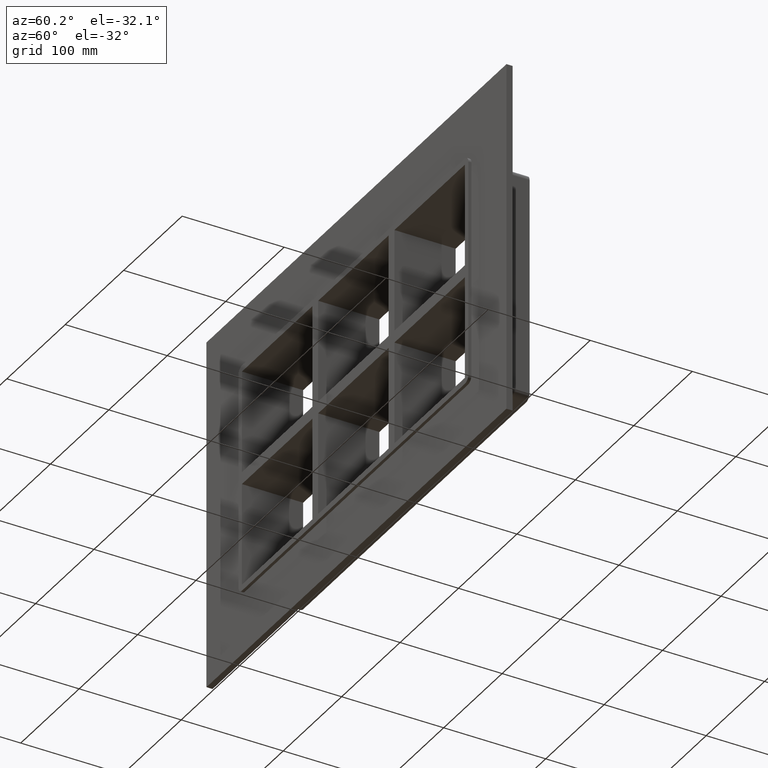
[diagram: clean part render]
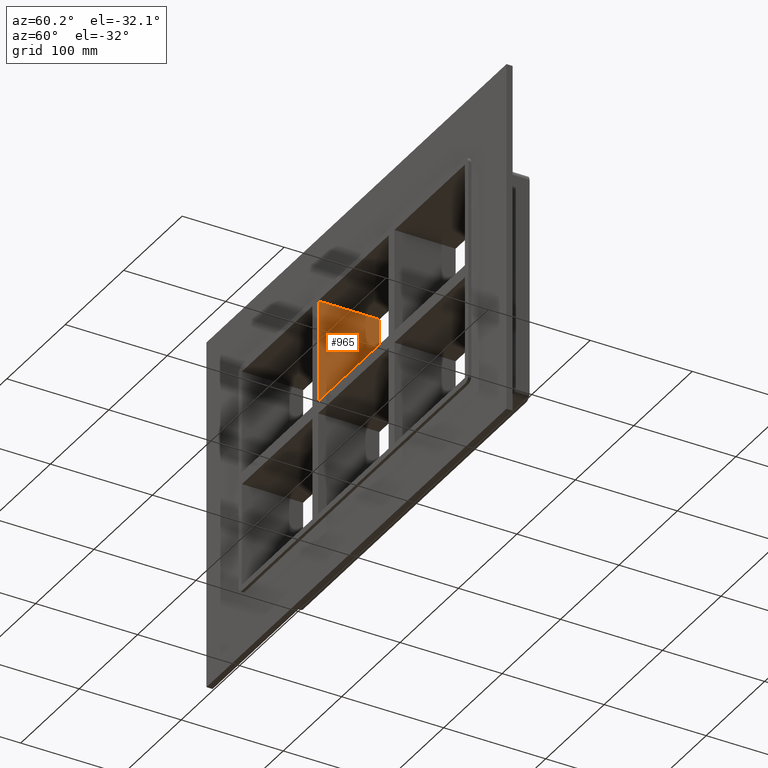
[diagram: same view with one face highlighted and labeled with its STEP entity id]
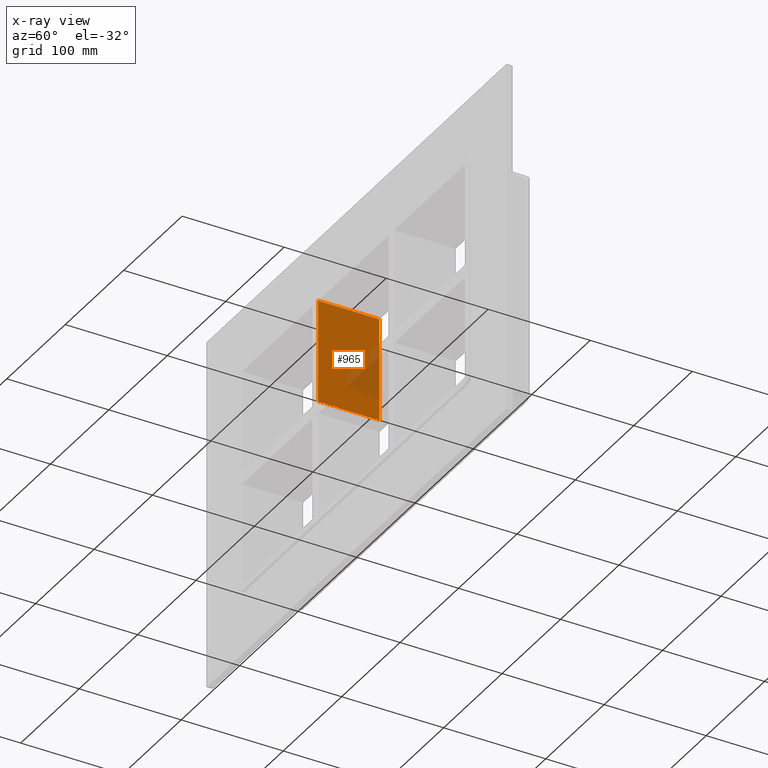
[diagram: x-ray of the same camera — body ghosted, the highlighted face saturated]
A machine part, auxiliary view. The second image highlights one B-rep face of the part: STEP entity #965.
The next image is the same camera in x-ray: the body ghosted, the highlighted face saturated — about 18% of this face is hidden behind the body in this view.
In plain terms, the highlighted planar face has unit normal (1, 0, 0).
Its self-contained STEP definition (entity closure, byte-faithful):
#383=CARTESIAN_POINT('',(-60.249999999996362,-3.0,5.999999999999943));
#384=VERTEX_POINT('',#383);
#391=CARTESIAN_POINT('',(-60.249999999996362,-3.0,107.00000000000003));
#392=VERTEX_POINT('',#391);
#393=CARTESIAN_POINT('',(-60.249999999996362,-3.0,107.00000000000003));
#394=DIRECTION('',(0.0,0.0,-1.0));
#395=VECTOR('',#394,101.00000000000009);
#396=LINE('',#393,#395);
#397=EDGE_CURVE('',#392,#384,#396,.T.);
#599=CARTESIAN_POINT('',(-60.249999999996362,57.0,107.00000000000003));
#600=VERTEX_POINT('',#599);
#601=CARTESIAN_POINT('',(-60.249999999996362,-3.0,107.00000000000003));
#602=DIRECTION('',(0.0,1.0,0.0));
#603=VECTOR('',#602,60.000000000000007);
#604=LINE('',#601,#603);
#605=EDGE_CURVE('',#392,#600,#604,.T.);
#677=CARTESIAN_POINT('',(-60.249999999996362,57.0,5.999999999999943));
#678=VERTEX_POINT('',#677);
#685=CARTESIAN_POINT('',(-60.249999999996362,-3.0,5.999999999999943));
#686=DIRECTION('',(0.0,1.0,0.0));
#687=VECTOR('',#686,60.0);
#688=LINE('',#685,#687);
#689=EDGE_CURVE('',#384,#678,#688,.T.);
#884=CARTESIAN_POINT('',(-60.249999999996362,57.0,107.00000000000003));
#885=DIRECTION('',(0.0,0.0,-1.0));
#886=VECTOR('',#885,101.00000000000009);
#887=LINE('',#884,#886);
#888=EDGE_CURVE('',#600,#678,#887,.T.);
#954=CARTESIAN_POINT('',(-60.249999999996362,-3.0,107.00000000000003));
#955=DIRECTION('',(1.0,0.0,0.0));
#956=DIRECTION('',(0.0,0.0,-1.0));
#957=AXIS2_PLACEMENT_3D('',#954,#955,#956);
#958=PLANE('',#957);
#959=ORIENTED_EDGE('',*,*,#689,.T.);
#960=ORIENTED_EDGE('',*,*,#888,.F.);
#961=ORIENTED_EDGE('',*,*,#605,.F.);
#962=ORIENTED_EDGE('',*,*,#397,.T.);
#963=EDGE_LOOP('',(#959,#960,#961,#962));
#964=FACE_OUTER_BOUND('',#963,.T.);
#965=ADVANCED_FACE('',(#964),#958,.T.);